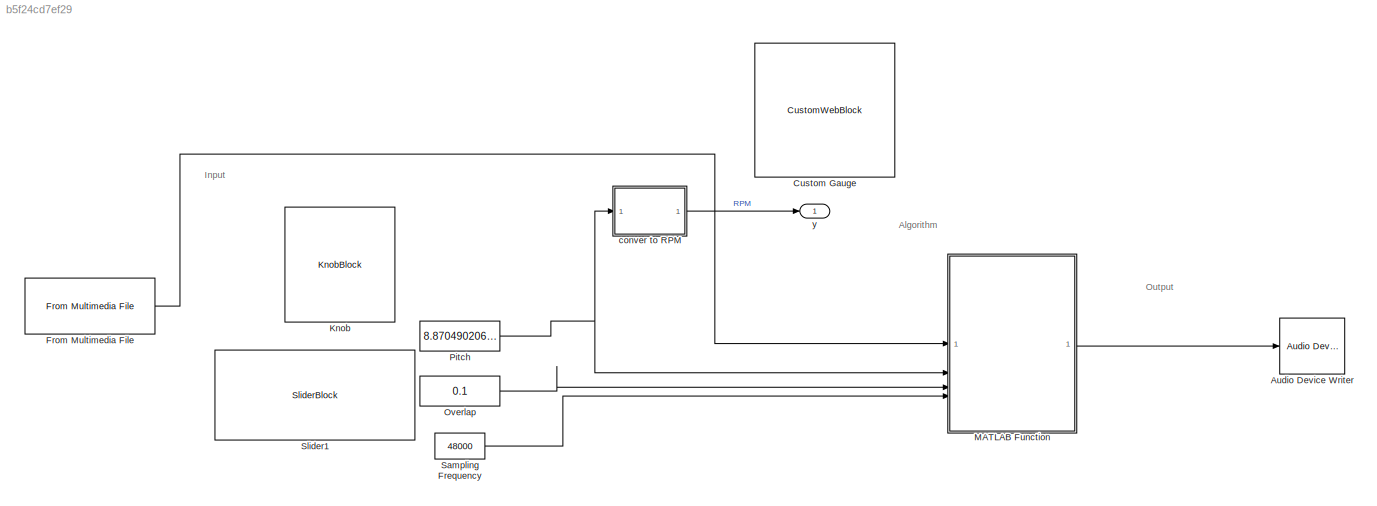
MODEL slx_b5f24cd7ef29
KIND model
CONFIG AbsTol = auto
CONFIG EnableMultiTasking = off
CONFIG FixedStep = auto
CONFIG MaxStep = auto
CONFIG MinStep = auto
CONFIG PreLoadFcn = nsemitones = 3;
CONFIG RelTol = 1e-3
CONFIG SampleTimeConstraint = Unconstrained
CONFIG SolverName = FixedStepDiscrete
CONFIG StartTime = 0.0
CONFIG StopTime = 3
BLOCK [Reference] Audio Device Writer  REF=dspsnks4/Audio Device
Writer
  LibrarySourceBlock = audiosinks/Audio Device\nWriter
  SourceBlock = dspsnks4/Audio Device\nWriter
  SourceType = Audio Device Writer
BLOCK [CustomWebBlock] Custom Gauge
  Configuration = {"components":[{"name":"CircularScaleComponent","settings":{"bounds":{"max":24000,"min":0,"tickInterval":"auto"},"direction":"cw","flipLimits":0,"innerRadius":0.840457634504587,"internalTickHeightScaleFactor":1,"labelColor":[250,245,200],"labelFont":{"font":"Arial","fontSize":12},"labelRadius":0.5525824738896701,"labelTransparency":1,"minorTickHeightScaleFactor":0.2,"needleImage":{"size":[0.187774...<+21610ch>
  ShowInitialText = on
BLOCK [Reference] From Multimedia File  REF=dspvision/From Multimedia File
  LibrarySourceBlock = audiosources/From Multimedia File
  SourceBlock = dspvision/From Multimedia File
  SourceType = From Multimedia File
BLOCK [KnobBlock] Knob
  ScaleMax = 12
  ScaleMin = -12
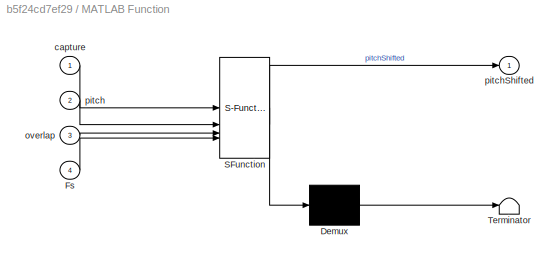
BLOCK [SubSystem] MATLAB Function
  ErrorFcn = Stateflow.Translate.translate
  PermitHierarchicalResolution = ExplicitOnly
  SFBlockType = MATLAB Function
  TreatAsAtomicUnit = on
BLOCK [Demux] MATLAB Function/ Demux 
  Outputs = 1
BLOCK [S-Function] MATLAB Function/ SFunction 
  EnableBusSupport = on
  FunctionName = sf_sfun
  PortCounts = [4 2]
  SFcnIsStateOwnerBlock = off
  SFunctionDeploymentMode = off
  Tag = Stateflow S-Function 2
BLOCK [Terminator] MATLAB Function/ Terminator 
BLOCK [Inport] MATLAB Function/Fs
  Port = 4
BLOCK [Inport] MATLAB Function/capture
BLOCK [Inport] MATLAB Function/overlap
  Port = 3
BLOCK [Inport] MATLAB Function/pitch
  Port = 2
BLOCK [Outport] MATLAB Function/pitchShifted
  VectorParamsAs1DForOutWhenUnconnected = off
BLOCK [Constant] Overlap
  Value = 0.1
BLOCK [Constant] Pitch 
  Value = 8.870490206210203
BLOCK [Constant] Sampling Frequency 
  Value = 48000
BLOCK [SliderBlock] Slider1
  LabelPosition = Hide
  ScaleMax = 0.5
  ScaleMin = 0.01
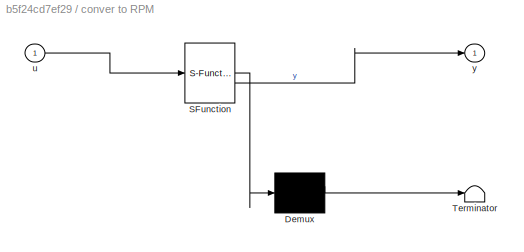
BLOCK [SubSystem] conver to RPM
  ErrorFcn = Stateflow.Translate.translate
  PermitHierarchicalResolution = ExplicitOnly
  SFBlockType = MATLAB Function
  TreatAsAtomicUnit = on
BLOCK [Demux] conver to RPM/ Demux 
  Outputs = 1
BLOCK [S-Function] conver to RPM/ SFunction 
  EnableBusSupport = on
  FunctionName = sf_sfun
  PortCounts = [1 2]
  SFcnIsStateOwnerBlock = off
  SFunctionDeploymentMode = off
  Tag = Stateflow S-Function 1
BLOCK [Terminator] conver to RPM/ Terminator 
BLOCK [Inport] conver to RPM/u
BLOCK [Outport] conver to RPM/y
BLOCK [Outport] y
ANNOTATION (root): Algorithm
ANNOTATION (root): Input
ANNOTATION (root): Output
LINE From Multimedia File:1 -> MATLAB Function:1
LINE MATLAB Function:1 -> Audio Device Writer:1
LINE Overlap:1 -> MATLAB Function:3
NET Pitch :1 -> MATLAB Function:2, conver to RPM:1
LINE Sampling Frequency :1 -> MATLAB Function:4
LINE conver to RPM:1 -> y:1
note: NET lines group one-source signal fan-out (src -> all destinations, sorted); 1:1 wires keep LINE
CHART conver to RPM states=1 transitions=1
  STATE_LABEL 'eML_blk_kernel()'
  STATE_LABEL 'SCRIPT:\nfunction y = fcn(u)\n\ny = (u(1)+12)*1000;\n'
CHART MATLAB Function states=1 transitions=1
  STATE_LABEL 'eML_blk_kernel()'
  STATE_LABEL "SCRIPT:\nfunction pitchShifted = pitchShift(capture, pitch, overlap, Fs)\n%pitchShift Pitch shift algorithm \n% Copyrights 2018-2019 The MathWorks, Inc.\n\n%#codegen\nresetFlag = 0;      % Reset flag set to 0\n\npersistent pitchShifter\nif isempty(pitchShifter)\n    pitchShifter = audiopluginexample.PitchShifter( ...\n        'PitchShift',8,'Overlap',0.3);\n    setSampleRate(pitchShifter,Fs);\nend\n\npitchShifte...<+246ch>"
CHART  states=0 transitions=0
CHART  states=0 transitions=0
